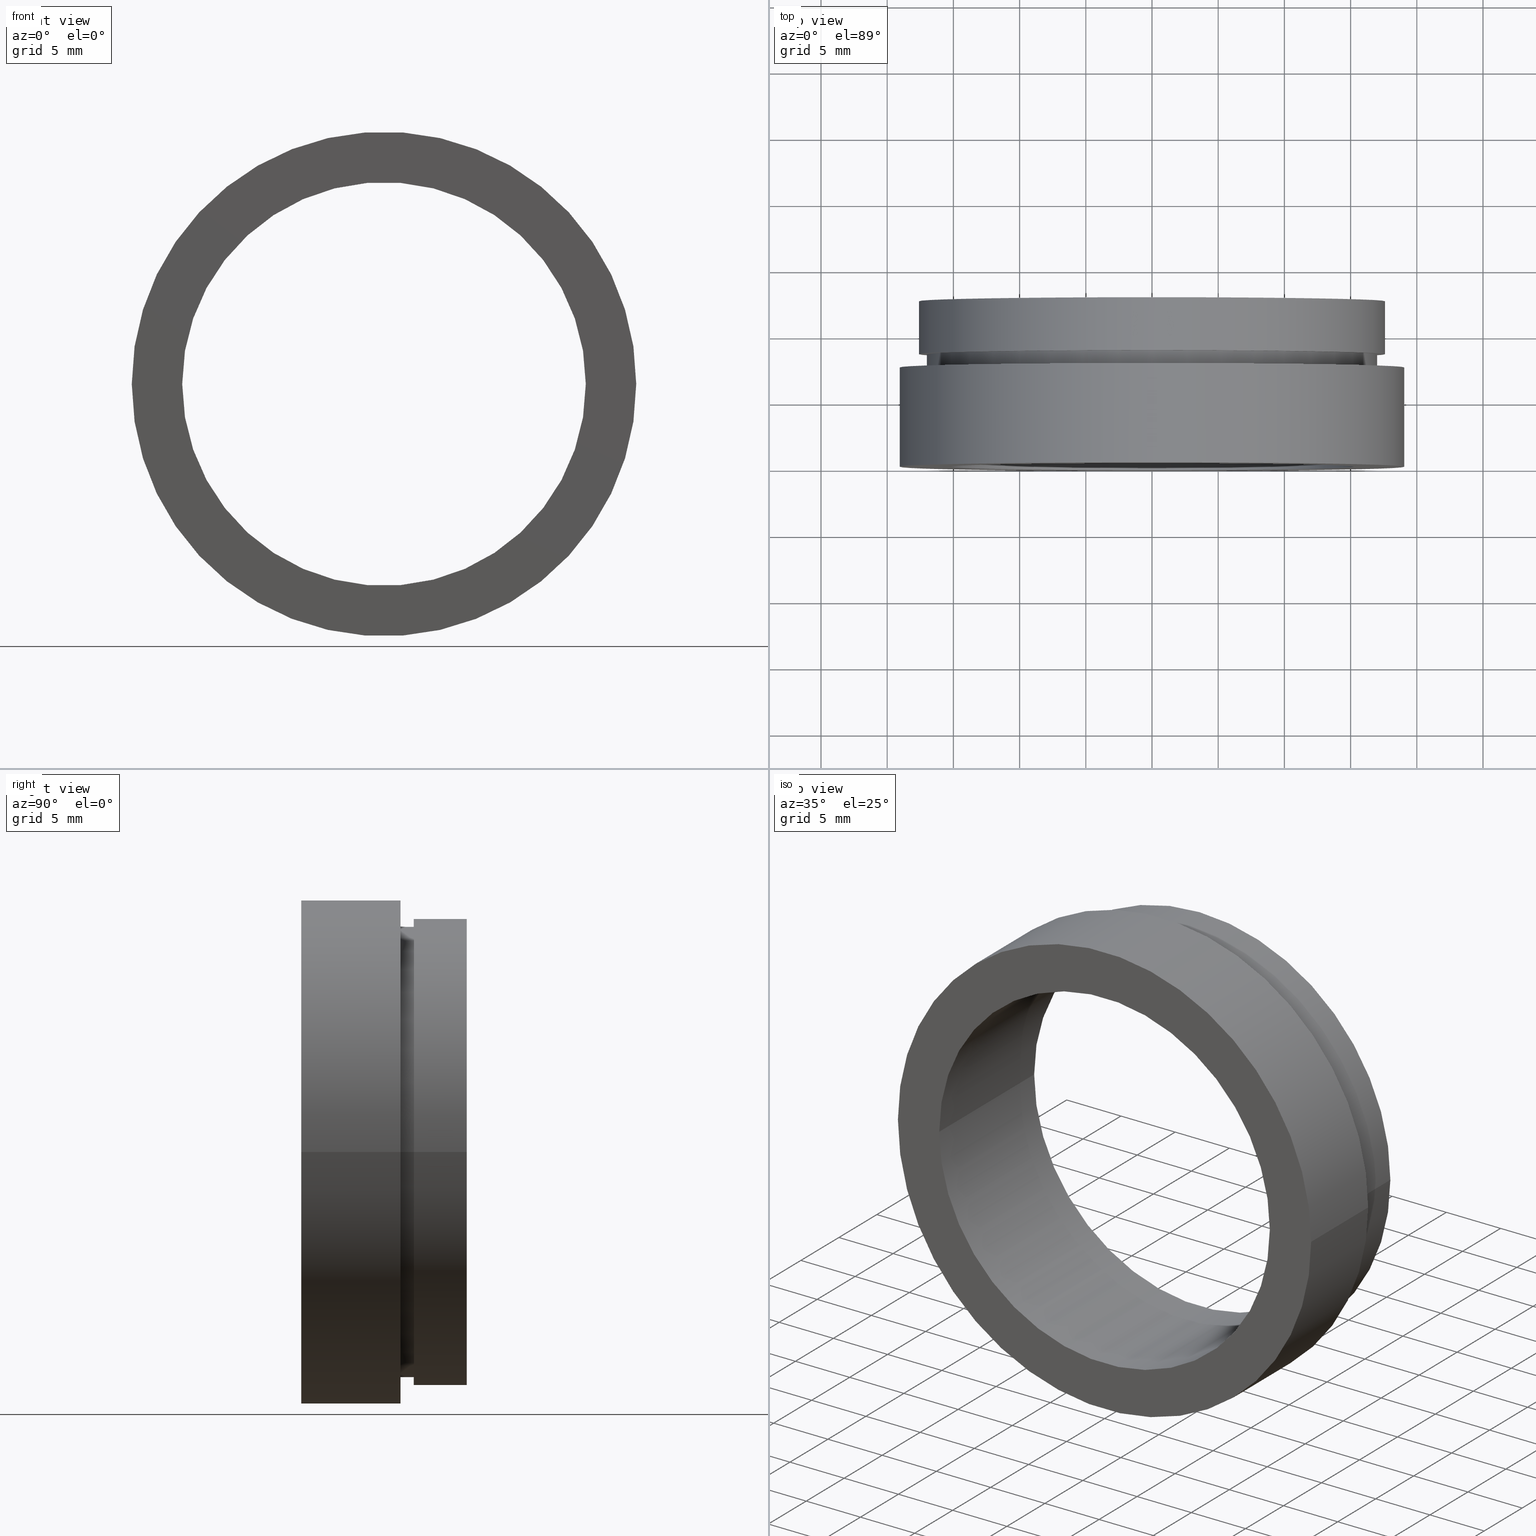
[diagram: canonical four-view strip — front | top / right | iso, engineering-drawing reading convention]
A machine part, canonical four-view strip (front | top / right | iso — engineering-drawing reading convention). The complete STEP part file that produces these views, byte-faithful:
ISO-10303-21;
HEADER;
FILE_DESCRIPTION (( 'STEP AP214' ),
    '1' );
FILE_NAME ('504108.STEP',
    '2019-10-08T05:36:44',
    ( '' ),
    ( '' ),
    'SwSTEP 2.0',
    'SolidWorks 2016',
    '' );
FILE_SCHEMA (( 'AUTOMOTIVE_DESIGN' ));
ENDSEC;

DATA;
#1 =( GEOMETRIC_REPRESENTATION_CONTEXT ( 3 ) GLOBAL_UNCERTAINTY_ASSIGNED_CONTEXT ( ( #315 ) ) GLOBAL_UNIT_ASSIGNED_CONTEXT ( ( #381, #417, #215 ) ) REPRESENTATION_CONTEXT ( 'NONE', 'WORKASPACE' ) );
#2 = ORIENTED_EDGE ( 'NONE', *, *, #97, .F. ) ;
#3 = MECHANICAL_DESIGN_GEOMETRIC_PRESENTATION_REPRESENTATION (  '', ( #222 ), #311 ) ;
#4 = UNCERTAINTY_MEASURE_WITH_UNIT (LENGTH_MEASURE( 1.000000000000000100E-005 ), #430, 'distance_accuracy_value', 'NONE');
#5 = CARTESIAN_POINT ( 'NONE',  ( 0.0000000000000000000, 16.88601823708207700, 0.0000000000000000000 ) ) ;
#6 = CYLINDRICAL_SURFACE ( 'NONE', #156, 17.60000000000000100 ) ;
#7 = PRODUCT ( '504108', '504108', '', ( #228 ) ) ;
#8 = PRESENTATION_STYLE_ASSIGNMENT (( #145 ) ) ;
#9 = EDGE_CURVE ( 'NONE', #58, #187, #154, .T. ) ;
#10 = PRODUCT_DEFINITION_FORMATION_WITH_SPECIFIED_SOURCE ( '�κ�', '', #7, .NOT_KNOWN. ) ;
#11 = PRESENTATION_LAYER_ASSIGNMENT (  '', '', ( #103 ) ) ;
#12 = EDGE_LOOP ( 'NONE', ( #96, #382 ) ) ;
#13 = ADVANCED_FACE ( 'NONE', ( #67 ), #275, .T. ) ;
#14 = CARTESIAN_POINT ( 'NONE',  ( 19.05000000000000400, 16.88601823708208000, 2.332952152375708400E-015 ) ) ;
#15 = VECTOR ( 'NONE', #388, 1000.000000000000000 ) ;
#16 = FILL_AREA_STYLE ('',( #180 ) ) ;
#17 = DIRECTION ( 'NONE',  ( -1.224646799147351000E-016, 1.000000000000000000, -0.0000000000000000000 ) ) ;
#18 = ORIENTED_EDGE ( 'NONE', *, *, #220, .F. ) ;
#19 = CARTESIAN_POINT ( 'NONE',  ( 1.149455719078122700E-015, 7.499999999999998200, 0.0000000000000000000 ) ) ;
#20 = CYLINDRICAL_SURFACE ( 'NONE', #111, 17.60000000000000100 ) ;
#21 = PRESENTATION_STYLE_ASSIGNMENT (( #90 ) ) ;
#22 = DIRECTION ( 'NONE',  ( -1.224646799147351000E-016, 1.000000000000000000, -0.0000000000000000000 ) ) ;
#23 = AXIS2_PLACEMENT_3D ( 'NONE', #323, #183, #353 ) ;
#24 = FILL_AREA_STYLE_COLOUR ( '', #141 ) ;
#25 = CARTESIAN_POINT ( 'NONE',  ( 5.371323195044472300E-016, 12.49999999999999800, 0.0000000000000000000 ) ) ;
#26 = CARTESIAN_POINT ( 'NONE',  ( 15.24000000000000000, 16.88601823708208000, 1.866361721900566200E-015 ) ) ;
#27 = APPLICATION_CONTEXT ( 'automotive_design' ) ;
#28 = VECTOR ( 'NONE', #59, 1000.000000000000000 ) ;
#29 = DIRECTION ( 'NONE',  ( -1.224646799147351000E-016, 1.000000000000000000, -0.0000000000000000000 ) ) ;
#30 = ORIENTED_EDGE ( 'NONE', *, *, #41, .T. ) ;
#31 = EDGE_CURVE ( 'NONE', #305, #298, #176, .T. ) ;
#32 = LINE ( 'NONE', #259, #210 ) ;
#33 = EDGE_CURVE ( 'NONE', #298, #348, #312, .T. ) ;
#34 = CARTESIAN_POINT ( 'NONE',  ( 1.149455719078122700E-015, 7.499999999999998200, 0.0000000000000000000 ) ) ;
#35 = MANIFOLD_SOLID_BREP ( '��ת1', #36 ) ;
#36 = CLOSED_SHELL ( 'NONE', ( #369, #62, #432, #248, #200, #263, #336, #95, #314, #13, #165, #129 ) ) ;
#37 = SURFACE_STYLE_FILL_AREA ( #81 ) ;
#38 = ORIENTED_EDGE ( 'NONE', *, *, #220, .T. ) ;
#39 =( NAMED_UNIT ( * ) PLANE_ANGLE_UNIT ( ) SI_UNIT ( $, .RADIAN. ) );
#40 = FACE_BOUND ( 'NONE', #12, .T. ) ;
#41 = EDGE_CURVE ( 'NONE', #187, #58, #149, .T. ) ;
#42 = EDGE_LOOP ( 'NONE', ( #357, #137, #104, #394 ) ) ;
#43 = CARTESIAN_POINT ( 'NONE',  ( 1.149455719078123100E-015, 7.499999999999996400, 0.0000000000000000000 ) ) ;
#44 = ORIENTED_EDGE ( 'NONE', *, *, #41, .F. ) ;
#45 = CARTESIAN_POINT ( 'NONE',  ( -19.05000000000000400, 16.88601823708207300, 0.0000000000000000000 ) ) ;
#46 = CARTESIAN_POINT ( 'NONE',  ( -19.05000000000000400, 7.499999999999993800, 0.0000000000000000000 ) ) ;
#47 = CARTESIAN_POINT ( 'NONE',  ( -19.04999999999999700, -5.802399104329318300E-015, 0.0000000000000000000 ) ) ;
#48 = EDGE_LOOP ( 'NONE', ( #269, #118, #428, #44 ) ) ;
#49 = CARTESIAN_POINT ( 'NONE',  ( 2.067940818438636500E-015, -3.469446951953614200E-015, 0.0000000000000000000 ) ) ;
#50 = SURFACE_STYLE_FILL_AREA ( #361 ) ;
#51 = AXIS2_PLACEMENT_3D ( 'NONE', #250, #112, #313 ) ;
#52 = EDGE_CURVE ( 'NONE', #88, #330, #297, .T. ) ;
#53 =( GEOMETRIC_REPRESENTATION_CONTEXT ( 3 ) GLOBAL_UNCERTAINTY_ASSIGNED_CONTEXT ( ( #4 ) ) GLOBAL_UNIT_ASSIGNED_CONTEXT ( ( #430, #364, #195 ) ) REPRESENTATION_CONTEXT ( 'NONE', 'WORKASPACE' ) );
#54 = AXIS2_PLACEMENT_3D ( 'NONE', #153, #289, #287 ) ;
#55 = SURFACE_SIDE_STYLE ('',( #37 ) ) ;
#56 = APPLICATION_PROTOCOL_DEFINITION ( 'draft international standard', 'automotive_design', 1998, #189 ) ;
#57 = ORIENTED_EDGE ( 'NONE', *, *, #290, .T. ) ;
#58 = VERTEX_POINT ( 'NONE', #46 ) ;
#59 = DIRECTION ( 'NONE',  ( -1.224646799147351000E-016, 1.000000000000000000, -0.0000000000000000000 ) ) ;
#60 = CIRCLE ( 'NONE', #206, 17.00000000000000000 ) ;
#61 = SURFACE_SIDE_STYLE ('',( #50 ) ) ;
#62 = ADVANCED_FACE ( 'NONE', ( #377 ), #253, .T. ) ;
#63 =( NAMED_UNIT ( * ) SI_UNIT ( $, .STERADIAN. ) SOLID_ANGLE_UNIT ( ) );
#64 = CARTESIAN_POINT ( 'NONE',  ( 2.067940818438636500E-015, -3.469446951953614200E-015, 0.0000000000000000000 ) ) ;
#65 = ORIENTED_EDGE ( 'NONE', *, *, #167, .T. ) ;
#66 = MECHANICAL_DESIGN_GEOMETRIC_PRESENTATION_REPRESENTATION (  '', ( #133 ), #1 ) ;
#67 = FACE_OUTER_BOUND ( 'NONE', #42, .T. ) ;
#68 = UNCERTAINTY_MEASURE_WITH_UNIT (LENGTH_MEASURE( 1.000000000000000100E-005 ), #199, 'distance_accuracy_value', 'NONE');
#69 = ORIENTED_EDGE ( 'NONE', *, *, #356, .F. ) ;
#70 = UNCERTAINTY_MEASURE_WITH_UNIT (LENGTH_MEASURE( 1.000000000000000100E-005 ), #168, 'distance_accuracy_value', 'NONE');
#71 = SURFACE_STYLE_FILL_AREA ( #434 ) ;
#72 = AXIS2_PLACEMENT_3D ( 'NONE', #286, #316, #74 ) ;
#73 = ORIENTED_EDGE ( 'NONE', *, *, #270, .T. ) ;
#74 = DIRECTION ( 'NONE',  ( -1.000000000000000000, -1.020425574104004100E-016, 0.0000000000000000000 ) ) ;
#75 = ORIENTED_EDGE ( 'NONE', *, *, #240, .F. ) ;
#76 = DIRECTION ( 'NONE',  ( -1.224646799147351000E-016, 1.000000000000000000, -0.0000000000000000000 ) ) ;
#77 = SURFACE_STYLE_USAGE ( .BOTH. , #285 ) ;
#78 = UNCERTAINTY_MEASURE_WITH_UNIT (LENGTH_MEASURE( 1.000000000000000100E-005 ), #257, 'distance_accuracy_value', 'NONE');
#79 = EDGE_CURVE ( 'NONE', #88, #267, #138, .T. ) ;
#80 = DIRECTION ( 'NONE',  ( -1.000000000000000000, -1.020425574104004100E-016, 0.0000000000000000000 ) ) ;
#81 = FILL_AREA_STYLE ('',( #252 ) ) ;
#82 = VECTOR ( 'NONE', #283, 1000.000000000000000 ) ;
#83 = VERTEX_POINT ( 'NONE', #251 ) ;
#84 = CARTESIAN_POINT ( 'NONE',  ( 15.24000000000000400, 12.50000000000000000, 1.866361721900566600E-015 ) ) ;
#85 = CARTESIAN_POINT ( 'NONE',  ( 2.067940818438636500E-015, -3.469446951953614200E-015, 0.0000000000000000000 ) ) ;
#86 = DIRECTION ( 'NONE',  ( 0.0000000000000000000, 0.0000000000000000000, 1.000000000000000000 ) ) ;
#87 = AXIS2_PLACEMENT_3D ( 'NONE', #43, #281, #352 ) ;
#88 = VERTEX_POINT ( 'NONE', #383 ) ;
#89 = DIRECTION ( 'NONE',  ( 1.224646799147351000E-016, -1.000000000000000000, 0.0000000000000000000 ) ) ;
#90 = SURFACE_STYLE_USAGE ( .BOTH. , #61 ) ;
#91 = DIRECTION ( 'NONE',  ( -1.000000000000000000, -2.276539994720219300E-016, 0.0000000000000000000 ) ) ;
#92 = SURFACE_STYLE_FILL_AREA ( #166 ) ;
#93 = CARTESIAN_POINT ( 'NONE',  ( 17.00000000000000000, 8.500000000000000000, 2.081899558550500300E-015 ) ) ;
#94 = FILL_AREA_STYLE_COLOUR ( '', #360 ) ;
#95 = ADVANCED_FACE ( 'NONE', ( #288 ), #6, .T. ) ;
#96 = ORIENTED_EDGE ( 'NONE', *, *, #142, .F. ) ;
#97 = EDGE_CURVE ( 'NONE', #237, #267, #264, .T. ) ;
#98 = DIRECTION ( 'NONE',  ( -1.000000000000000000, -1.224646799147351200E-016, 0.0000000000000000000 ) ) ;
#99 = ORIENTED_EDGE ( 'NONE', *, *, #276, .T. ) ;
#100 =( LENGTH_UNIT ( ) NAMED_UNIT ( * ) SI_UNIT ( .MILLI., .METRE. ) );
#101 = FACE_OUTER_BOUND ( 'NONE', #272, .T. ) ;
#102 = MECHANICAL_DESIGN_GEOMETRIC_PRESENTATION_REPRESENTATION (  '', ( #327 ), #53 ) ;
#103 = STYLED_ITEM ( 'NONE', ( #21 ), #263 ) ;
#104 = ORIENTED_EDGE ( 'NONE', *, *, #240, .T. ) ;
#105 = DIRECTION ( 'NONE',  ( -1.224646799147351000E-016, 1.000000000000000000, -0.0000000000000000000 ) ) ;
#106 = FACE_OUTER_BOUND ( 'NONE', #113, .T. ) ;
#107 = FILL_AREA_STYLE ('',( #386 ) ) ;
#108 = EDGE_LOOP ( 'NONE', ( #341, #190, #2, #294 ) ) ;
#109 = AXIS2_PLACEMENT_3D ( 'NONE', #389, #354, #292 ) ;
#110 = SURFACE_SIDE_STYLE ('',( #413 ) ) ;
#111 = AXIS2_PLACEMENT_3D ( 'NONE', #433, #337, #235 ) ;
#112 = DIRECTION ( 'NONE',  ( -1.224646799147351000E-016, 1.000000000000000000, -0.0000000000000000000 ) ) ;
#113 = EDGE_LOOP ( 'NONE', ( #209, #57 ) ) ;
#114 = DIRECTION ( 'NONE',  ( -1.224646799147351000E-016, 1.000000000000000000, -0.0000000000000000000 ) ) ;
#115 = CYLINDRICAL_SURFACE ( 'NONE', #415, 15.24000000000000000 ) ;
#116 = CYLINDRICAL_SURFACE ( 'NONE', #109, 19.05000000000000400 ) ;
#117 = CARTESIAN_POINT ( 'NONE',  ( 0.0000000000000000000, 16.88601823708207700, 0.0000000000000000000 ) ) ;
#118 = ORIENTED_EDGE ( 'NONE', *, *, #412, .T. ) ;
#119 = DIRECTION ( 'NONE',  ( -1.224646799147351000E-016, 1.000000000000000000, -0.0000000000000000000 ) ) ;
#120 = VECTOR ( 'NONE', #114, 1000.000000000000000 ) ;
#121 = PRODUCT_RELATED_PRODUCT_CATEGORY ( 'part', '', ( #7 ) ) ;
#122 = AXIS2_PLACEMENT_3D ( 'NONE', #25, #427, #192 ) ;
#123 = SURFACE_STYLE_USAGE ( .BOTH. , #55 ) ;
#124 =( NAMED_UNIT ( * ) PLANE_ANGLE_UNIT ( ) SI_UNIT ( $, .RADIAN. ) );
#125 = EDGE_LOOP ( 'NONE', ( #38, #157 ) ) ;
#126 = CIRCLE ( 'NONE', #256, 17.60000000000000100 ) ;
#127 = VERTEX_POINT ( 'NONE', #47 ) ;
#128 = DIRECTION ( 'NONE',  ( -1.224646799147351000E-016, 1.000000000000000000, -0.0000000000000000000 ) ) ;
#129 = ADVANCED_FACE ( 'NONE', ( #174 ), #116, .T. ) ;
#130 = CIRCLE ( 'NONE', #54, 15.24000000000000200 ) ;
#131 = FILL_AREA_STYLE_COLOUR ( '', #301 ) ;
#132 =( NAMED_UNIT ( * ) SI_UNIT ( $, .STERADIAN. ) SOLID_ANGLE_UNIT ( ) );
#133 = STYLED_ITEM ( 'NONE', ( #8 ), #35 ) ;
#134 = EDGE_LOOP ( 'NONE', ( #331, #409, #426, #340 ) ) ;
#135 = PRODUCT_DEFINITION ( 'δ֪', '', #10, #420 ) ;
#136 = LINE ( 'NONE', #261, #372 ) ;
#137 = ORIENTED_EDGE ( 'NONE', *, *, #378, .T. ) ;
#138 = LINE ( 'NONE', #181, #82 ) ;
#139 = DIRECTION ( 'NONE',  ( -1.224646799147351000E-016, 1.000000000000000000, -0.0000000000000000000 ) ) ;
#140 = EDGE_LOOP ( 'NONE', ( #403, #307 ) ) ;
#141 = COLOUR_RGB ( '',1.000000000000000000, 1.000000000000000000, 1.000000000000000000 ) ;
#142 = EDGE_CURVE ( 'NONE', #217, #305, #60, .T. ) ;
#143 = AXIS2_PLACEMENT_3D ( 'NONE', #161, #325, #332 ) ;
#144 = VECTOR ( 'NONE', #254, 1000.000000000000000 ) ;
#145 = SURFACE_STYLE_USAGE ( .BOTH. , #110 ) ;
#146 = ORIENTED_EDGE ( 'NONE', *, *, #234, .F. ) ;
#147 = DIRECTION ( 'NONE',  ( -1.000000000000000000, -9.856383386231857600E-017, 0.0000000000000000000 ) ) ;
#148 = CARTESIAN_POINT ( 'NONE',  ( 1.026991039163387700E-015, 8.499999999999998200, 0.0000000000000000000 ) ) ;
#149 = CIRCLE ( 'NONE', #87, 19.05000000000000400 ) ;
#150 = DIRECTION ( 'NONE',  ( -1.000000000000000000, -1.224646799147350700E-016, 0.0000000000000000000 ) ) ;
#151 = CARTESIAN_POINT ( 'NONE',  ( -17.60000000000000100, 12.49999999999999500, 0.0000000000000000000 ) ) ;
#152 = LINE ( 'NONE', #45, #120 ) ;
#153 = CARTESIAN_POINT ( 'NONE',  ( 5.371323195044472300E-016, 12.49999999999999800, 0.0000000000000000000 ) ) ;
#154 = CIRCLE ( 'NONE', #186, 19.05000000000000400 ) ;
#155 = PLANE ( 'NONE',  #143 ) ;
#156 = AXIS2_PLACEMENT_3D ( 'NONE', #319, #105, #351 ) ;
#157 = ORIENTED_EDGE ( 'NONE', *, *, #33, .T. ) ;
#158 = CARTESIAN_POINT ( 'NONE',  ( 0.0000000000000000000, 16.88601823708207700, 0.0000000000000000000 ) ) ;
#159 = EDGE_LOOP ( 'NONE', ( #400, #371, #18, #75 ) ) ;
#160 = AXIS2_PLACEMENT_3D ( 'NONE', #393, #86, #390 ) ;
#161 = CARTESIAN_POINT ( 'NONE',  ( 17.60000000000000100, 8.500000000000000000, 0.0000000000000000000 ) ) ;
#162 = DIRECTION ( 'NONE',  ( -1.000000000000000000, -2.276539994720219300E-016, 0.0000000000000000000 ) ) ;
#163 = CARTESIAN_POINT ( 'NONE',  ( 17.60000000000000100, 12.49999999999999800, 2.155378366499341600E-015 ) ) ;
#164 = FACE_OUTER_BOUND ( 'NONE', #108, .T. ) ;
#165 = ADVANCED_FACE ( 'NONE', ( #40, #344 ), #355, .F. ) ;
#166 = FILL_AREA_STYLE ('',( #94 ) ) ;
#167 = EDGE_CURVE ( 'NONE', #83, #187, #229, .T. ) ;
#168 =( LENGTH_UNIT ( ) NAMED_UNIT ( * ) SI_UNIT ( .MILLI., .METRE. ) );
#169 = AXIS2_PLACEMENT_3D ( 'NONE', #300, #303, #98 ) ;
#170 = EDGE_LOOP ( 'NONE', ( #227, #214, #231, #408 ) ) ;
#171 = DIRECTION ( 'NONE',  ( -1.224646799147351000E-016, 1.000000000000000000, -0.0000000000000000000 ) ) ;
#172 = CIRCLE ( 'NONE', #425, 17.00000000000000000 ) ;
#173 = EDGE_CURVE ( 'NONE', #175, #384, #130, .T. ) ;
#174 = FACE_OUTER_BOUND ( 'NONE', #48, .T. ) ;
#175 = VERTEX_POINT ( 'NONE', #84 ) ;
#176 = LINE ( 'NONE', #419, #326 ) ;
#177 = FACE_OUTER_BOUND ( 'NONE', #238, .T. ) ;
#178 = EDGE_CURVE ( 'NONE', #127, #58, #152, .T. ) ;
#179 = ORIENTED_EDGE ( 'NONE', *, *, #173, .F. ) ;
#180 = FILL_AREA_STYLE_COLOUR ( '', #225 ) ;
#181 = CARTESIAN_POINT ( 'NONE',  ( 17.60000000000000100, 16.88601823708208000, 2.155378366499341600E-015 ) ) ;
#182 = DIRECTION ( 'NONE',  ( -1.224646799147351000E-016, 1.000000000000000000, -0.0000000000000000000 ) ) ;
#183 = DIRECTION ( 'NONE',  ( -1.224646799147351000E-016, 1.000000000000000000, -0.0000000000000000000 ) ) ;
#184 = DIRECTION ( 'NONE',  ( -1.224646799147351000E-016, 1.000000000000000000, -0.0000000000000000000 ) ) ;
#185 = ORIENTED_EDGE ( 'NONE', *, *, #423, .F. ) ;
#186 = AXIS2_PLACEMENT_3D ( 'NONE', #342, #139, #410 ) ;
#187 = VERTEX_POINT ( 'NONE', #188 ) ;
#188 = CARTESIAN_POINT ( 'NONE',  ( 19.05000000000000400, 7.499999999999999100, 2.332952152375708400E-015 ) ) ;
#189 = APPLICATION_CONTEXT ( 'automotive_design' ) ;
#190 = ORIENTED_EDGE ( 'NONE', *, *, #79, .T. ) ;
#191 = AXIS2_PLACEMENT_3D ( 'NONE', #158, #335, #402 ) ;
#192 = DIRECTION ( 'NONE',  ( -1.000000000000000000, -1.138269997360109400E-016, 0.0000000000000000000 ) ) ;
#193 =( NAMED_UNIT ( * ) PLANE_ANGLE_UNIT ( ) SI_UNIT ( $, .RADIAN. ) );
#194 = DIRECTION ( 'NONE',  ( 1.000000000000000000, 1.224646799147351000E-016, 0.0000000000000000000 ) ) ;
#195 =( NAMED_UNIT ( * ) SI_UNIT ( $, .STERADIAN. ) SOLID_ANGLE_UNIT ( ) );
#196 = PRODUCT_DEFINITION_SHAPE ( 'NONE', 'NONE',  #135 ) ;
#197 = FACE_BOUND ( 'NONE', #125, .T. ) ;
#198 = APPLICATION_PROTOCOL_DEFINITION ( 'draft international standard', 'automotive_design', 1998, #27 ) ;
#199 =( LENGTH_UNIT ( ) NAMED_UNIT ( * ) SI_UNIT ( .MILLI., .METRE. ) );
#200 = ADVANCED_FACE ( 'NONE', ( #232, #405 ), #223, .F. ) ;
#201 = PRESENTATION_STYLE_ASSIGNMENT (( #347 ) ) ;
#202 = DIRECTION ( 'NONE',  ( -1.000000000000000000, -1.224646799147351200E-016, 0.0000000000000000000 ) ) ;
#203 = AXIS2_PLACEMENT_3D ( 'NONE', #218, #422, #249 ) ;
#204 = DIRECTION ( 'NONE',  ( -1.000000000000000000, -1.020425574104004100E-016, 0.0000000000000000000 ) ) ;
#205 = DIRECTION ( 'NONE',  ( -1.224646799147351000E-016, 1.000000000000000000, -0.0000000000000000000 ) ) ;
#206 = AXIS2_PLACEMENT_3D ( 'NONE', #19, #119, #322 ) ;
#207 = ORIENTED_EDGE ( 'NONE', *, *, #270, .F. ) ;
#208 = SURFACE_STYLE_FILL_AREA ( #107 ) ;
#209 = ORIENTED_EDGE ( 'NONE', *, *, #97, .T. ) ;
#210 = VECTOR ( 'NONE', #22, 1000.000000000000000 ) ;
#211 = PRESENTATION_LAYER_ASSIGNMENT (  '', '', ( #324 ) ) ;
#212 =( GEOMETRIC_REPRESENTATION_CONTEXT ( 3 ) GLOBAL_UNCERTAINTY_ASSIGNED_CONTEXT ( ( #70 ) ) GLOBAL_UNIT_ASSIGNED_CONTEXT ( ( #168, #406, #63 ) ) REPRESENTATION_CONTEXT ( 'NONE', 'WORKASPACE' ) );
#213 = AXIS2_PLACEMENT_3D ( 'NONE', #64, #265, #202 ) ;
#214 = ORIENTED_EDGE ( 'NONE', *, *, #356, .T. ) ;
#215 =( NAMED_UNIT ( * ) SI_UNIT ( $, .STERADIAN. ) SOLID_ANGLE_UNIT ( ) );
#216 = DIRECTION ( 'NONE',  ( -1.224646799147351000E-016, 1.000000000000000000, -0.0000000000000000000 ) ) ;
#217 = VERTEX_POINT ( 'NONE', #385 ) ;
#218 = CARTESIAN_POINT ( 'NONE',  ( 17.00000000000000000, 7.499999999999999100, 0.0000000000000000000 ) ) ;
#219 = CARTESIAN_POINT ( 'NONE',  ( -17.00000000000000000, 16.88601823708207300, 0.0000000000000000000 ) ) ;
#220 = EDGE_CURVE ( 'NONE', #348, #298, #367, .T. ) ;
#221 = COLOUR_RGB ( '',1.000000000000000000, 1.000000000000000000, 1.000000000000000000 ) ;
#222 = STYLED_ITEM ( 'NONE', ( #273 ), #248 ) ;
#223 = PLANE ( 'NONE',  #266 ) ;
#224 = EDGE_CURVE ( 'NONE', #258, #416, #284, .T. ) ;
#225 = COLOUR_RGB ( '',1.000000000000000000, 1.000000000000000000, 1.000000000000000000 ) ;
#226 = CARTESIAN_POINT ( 'NONE',  ( 5.371323195044474300E-016, 12.49999999999999600, 0.0000000000000000000 ) ) ;
#227 = ORIENTED_EDGE ( 'NONE', *, *, #224, .F. ) ;
#228 = PRODUCT_CONTEXT ( 'NONE', #189, 'mechanical' ) ;
#229 = LINE ( 'NONE', #14, #144 ) ;
#230 = DIRECTION ( 'NONE',  ( -1.224646799147351000E-016, 1.000000000000000000, -0.0000000000000000000 ) ) ;
#231 = ORIENTED_EDGE ( 'NONE', *, *, #173, .T. ) ;
#232 = FACE_OUTER_BOUND ( 'NONE', #245, .T. ) ;
#233 = SURFACE_STYLE_USAGE ( .BOTH. , #370 ) ;
#234 = EDGE_CURVE ( 'NONE', #330, #88, #126, .T. ) ;
#235 = DIRECTION ( 'NONE',  ( -1.000000000000000000, -1.971276677246371500E-016, 0.0000000000000000000 ) ) ;
#236 = ORIENTED_EDGE ( 'NONE', *, *, #9, .T. ) ;
#237 = VERTEX_POINT ( 'NONE', #151 ) ;
#238 = EDGE_LOOP ( 'NONE', ( #345, #65, #317, #334 ) ) ;
#239 = CIRCLE ( 'NONE', #213, 19.05000000000000100 ) ;
#240 = EDGE_CURVE ( 'NONE', #217, #348, #309, .T. ) ;
#241 = PRESENTATION_LAYER_ASSIGNMENT (  '', '', ( #222 ) ) ;
#242 = ORIENTED_EDGE ( 'NONE', *, *, #310, .F. ) ;
#243 = SHAPE_DEFINITION_REPRESENTATION ( #196, #271 ) ;
#244 =( GEOMETRIC_REPRESENTATION_CONTEXT ( 3 ) GLOBAL_UNCERTAINTY_ASSIGNED_CONTEXT ( ( #397 ) ) GLOBAL_UNIT_ASSIGNED_CONTEXT ( ( #308, #39, #376 ) ) REPRESENTATION_CONTEXT ( 'NONE', 'WORKASPACE' ) );
#245 = EDGE_LOOP ( 'NONE', ( #185, #362 ) ) ;
#246 = ORIENTED_EDGE ( 'NONE', *, *, #52, .F. ) ;
#247 = CARTESIAN_POINT ( 'NONE',  ( 1.026991039163387700E-015, 8.499999999999998200, 0.0000000000000000000 ) ) ;
#248 = ADVANCED_FACE ( 'NONE', ( #431 ), #115, .F. ) ;
#249 = DIRECTION ( 'NONE',  ( 1.000000000000000000, 1.224646799147351000E-016, 0.0000000000000000000 ) ) ;
#250 = CARTESIAN_POINT ( 'NONE',  ( 0.0000000000000000000, 16.88601823708207700, 0.0000000000000000000 ) ) ;
#251 = CARTESIAN_POINT ( 'NONE',  ( 19.05000000000000400, -1.136494799577910300E-015, 2.332952152375708400E-015 ) ) ;
#252 = FILL_AREA_STYLE_COLOUR ( '', #221 ) ;
#253 = CYLINDRICAL_SURFACE ( 'NONE', #51, 17.00000000000000000 ) ;
#254 = DIRECTION ( 'NONE',  ( -1.224646799147351000E-016, 1.000000000000000000, -0.0000000000000000000 ) ) ;
#255 = EDGE_CURVE ( 'NONE', #330, #237, #136, .T. ) ;
#256 = AXIS2_PLACEMENT_3D ( 'NONE', #148, #182, #418 ) ;
#257 =( LENGTH_UNIT ( ) NAMED_UNIT ( * ) SI_UNIT ( .MILLI., .METRE. ) );
#258 = VERTEX_POINT ( 'NONE', #366 ) ;
#259 = CARTESIAN_POINT ( 'NONE',  ( -15.24000000000000000, 16.88601823708207300, 0.0000000000000000000 ) ) ;
#260 = DIRECTION ( 'NONE',  ( -1.000000000000000000, -9.856383386231857600E-017, 0.0000000000000000000 ) ) ;
#261 = CARTESIAN_POINT ( 'NONE',  ( -17.60000000000000100, 16.88601823708207300, 0.0000000000000000000 ) ) ;
#262 = LINE ( 'NONE', #26, #28 ) ;
#263 = ADVANCED_FACE ( 'NONE', ( #101 ), #398, .F. ) ;
#264 = CIRCLE ( 'NONE', #23, 17.60000000000000100 ) ;
#265 = DIRECTION ( 'NONE',  ( -1.224646799147351000E-016, 1.000000000000000000, -0.0000000000000000000 ) ) ;
#266 = AXIS2_PLACEMENT_3D ( 'NONE', #320, #282, #359 ) ;
#267 = VERTEX_POINT ( 'NONE', #163 ) ;
#268 = FACE_BOUND ( 'NONE', #279, .T. ) ;
#269 = ORIENTED_EDGE ( 'NONE', *, *, #167, .F. ) ;
#270 = EDGE_CURVE ( 'NONE', #384, #175, #411, .T. ) ;
#271 = ADVANCED_BREP_SHAPE_REPRESENTATION ( '504108', ( #35, #160 ), #424 ) ;
#272 = EDGE_LOOP ( 'NONE', ( #69, #242, #99, #73 ) ) ;
#273 = PRESENTATION_STYLE_ASSIGNMENT (( #123 ) ) ;
#274 = COLOUR_RGB ( '',1.000000000000000000, 1.000000000000000000, 1.000000000000000000 ) ;
#275 = CYLINDRICAL_SURFACE ( 'NONE', #346, 17.00000000000000000 ) ;
#276 = EDGE_CURVE ( 'NONE', #416, #384, #32, .T. ) ;
#277 = CIRCLE ( 'NONE', #374, 15.24000000000000000 ) ;
#278 = DIRECTION ( 'NONE',  ( -1.000000000000000000, -2.040851148208008200E-016, 0.0000000000000000000 ) ) ;
#279 = EDGE_LOOP ( 'NONE', ( #207, #179 ) ) ;
#280 = STYLED_ITEM ( 'NONE', ( #293 ), #432 ) ;
#281 = DIRECTION ( 'NONE',  ( -1.224646799147351000E-016, 1.000000000000000000, -0.0000000000000000000 ) ) ;
#282 = DIRECTION ( 'NONE',  ( -1.224646799147351000E-016, 1.000000000000000000, 0.0000000000000000000 ) ) ;
#283 = DIRECTION ( 'NONE',  ( -1.224646799147351000E-016, 1.000000000000000000, -0.0000000000000000000 ) ) ;
#284 = CIRCLE ( 'NONE', #291, 15.24000000000000000 ) ;
#285 = SURFACE_SIDE_STYLE ('',( #92 ) ) ;
#286 = CARTESIAN_POINT ( 'NONE',  ( 1.026991039163387700E-015, 8.499999999999998200, 0.0000000000000000000 ) ) ;
#287 = DIRECTION ( 'NONE',  ( -1.000000000000000000, -1.138269997360109400E-016, 0.0000000000000000000 ) ) ;
#288 = FACE_OUTER_BOUND ( 'NONE', #134, .T. ) ;
#289 = DIRECTION ( 'NONE',  ( -1.224646799147351000E-016, 1.000000000000000000, -0.0000000000000000000 ) ) ;
#290 = EDGE_CURVE ( 'NONE', #267, #237, #306, .T. ) ;
#291 = AXIS2_PLACEMENT_3D ( 'NONE', #49, #321, #150 ) ;
#292 = DIRECTION ( 'NONE',  ( -1.000000000000000000, -1.821231995776175000E-016, 0.0000000000000000000 ) ) ;
#293 = PRESENTATION_STYLE_ASSIGNMENT (( #233 ) ) ;
#294 = ORIENTED_EDGE ( 'NONE', *, *, #255, .F. ) ;
#295 = EDGE_LOOP ( 'NONE', ( #236, #30 ) ) ;
#296 = DIRECTION ( 'NONE',  ( -1.000000000000000000, -1.224646799147350700E-016, 0.0000000000000000000 ) ) ;
#297 = CIRCLE ( 'NONE', #373, 17.60000000000000100 ) ;
#298 = VERTEX_POINT ( 'NONE', #93 ) ;
#299 = CARTESIAN_POINT ( 'NONE',  ( -15.23999999999999800, -5.335808673854176800E-015, 0.0000000000000000000 ) ) ;
#300 = CARTESIAN_POINT ( 'NONE',  ( 2.067940818438636500E-015, -3.469446951953614200E-015, 0.0000000000000000000 ) ) ;
#301 = COLOUR_RGB ( '',1.000000000000000000, 1.000000000000000000, 1.000000000000000000 ) ;
#302 = PRESENTATION_LAYER_ASSIGNMENT (  '', '', ( #133 ) ) ;
#303 = DIRECTION ( 'NONE',  ( -1.224646799147351000E-016, 1.000000000000000000, -0.0000000000000000000 ) ) ;
#304 = PRESENTATION_LAYER_ASSIGNMENT (  '', '', ( #280 ) ) ;
#305 = VERTEX_POINT ( 'NONE', #429 ) ;
#306 = CIRCLE ( 'NONE', #407, 17.60000000000000100 ) ;
#307 = ORIENTED_EDGE ( 'NONE', *, *, #224, .T. ) ;
#308 =( LENGTH_UNIT ( ) NAMED_UNIT ( * ) SI_UNIT ( .MILLI., .METRE. ) );
#309 = LINE ( 'NONE', #219, #15 ) ;
#310 = EDGE_CURVE ( 'NONE', #416, #258, #277, .T. ) ;
#311 =( GEOMETRIC_REPRESENTATION_CONTEXT ( 3 ) GLOBAL_UNCERTAINTY_ASSIGNED_CONTEXT ( ( #68 ) ) GLOBAL_UNIT_ASSIGNED_CONTEXT ( ( #199, #124, #404 ) ) REPRESENTATION_CONTEXT ( 'NONE', 'WORKASPACE' ) );
#312 = CIRCLE ( 'NONE', #72, 17.00000000000000000 ) ;
#313 = DIRECTION ( 'NONE',  ( -1.000000000000000000, -2.040851148208008200E-016, 0.0000000000000000000 ) ) ;
#314 = ADVANCED_FACE ( 'NONE', ( #375, #197 ), #155, .F. ) ;
#315 = UNCERTAINTY_MEASURE_WITH_UNIT (LENGTH_MEASURE( 1.000000000000000100E-005 ), #381, 'distance_accuracy_value', 'NONE');
#316 = DIRECTION ( 'NONE',  ( -1.224646799147351000E-016, 1.000000000000000000, -0.0000000000000000000 ) ) ;
#317 = ORIENTED_EDGE ( 'NONE', *, *, #9, .F. ) ;
#318 = CARTESIAN_POINT ( 'NONE',  ( 1.026991039163387700E-015, 8.499999999999998200, 0.0000000000000000000 ) ) ;
#319 = CARTESIAN_POINT ( 'NONE',  ( 0.0000000000000000000, 16.88601823708207700, 0.0000000000000000000 ) ) ;
#320 = CARTESIAN_POINT ( 'NONE',  ( 19.05000000000000400, -4.336808689942023700E-016, 0.0000000000000000000 ) ) ;
#321 = DIRECTION ( 'NONE',  ( -1.224646799147351000E-016, 1.000000000000000000, -0.0000000000000000000 ) ) ;
#322 = DIRECTION ( 'NONE',  ( -1.000000000000000000, -1.020425574104004100E-016, 0.0000000000000000000 ) ) ;
#323 = CARTESIAN_POINT ( 'NONE',  ( 5.371323195044474300E-016, 12.49999999999999600, 0.0000000000000000000 ) ) ;
#324 = STYLED_ITEM ( 'NONE', ( #201 ), #95 ) ;
#325 = DIRECTION ( 'NONE',  ( -1.224646799147351000E-016, 1.000000000000000000, 0.0000000000000000000 ) ) ;
#326 = VECTOR ( 'NONE', #216, 1000.000000000000000 ) ;
#327 = STYLED_ITEM ( 'NONE', ( #414 ), #271 ) ;
#328 = MECHANICAL_DESIGN_GEOMETRIC_PRESENTATION_REPRESENTATION (  '', ( #280 ), #212 ) ;
#329 = CARTESIAN_POINT ( 'NONE',  ( -17.00000000000000000, 8.499999999999996400, 0.0000000000000000000 ) ) ;
#330 = VERTEX_POINT ( 'NONE', #365 ) ;
#331 = ORIENTED_EDGE ( 'NONE', *, *, #79, .F. ) ;
#332 = DIRECTION ( 'NONE',  ( -1.000000000000000000, -1.224646799147351000E-016, 0.0000000000000000000 ) ) ;
#333 = CARTESIAN_POINT ( 'NONE',  ( 0.0000000000000000000, 16.88601823708207700, 0.0000000000000000000 ) ) ;
#334 = ORIENTED_EDGE ( 'NONE', *, *, #178, .F. ) ;
#335 = DIRECTION ( 'NONE',  ( -1.224646799147351000E-016, 1.000000000000000000, -0.0000000000000000000 ) ) ;
#336 = ADVANCED_FACE ( 'NONE', ( #268, #106 ), #399, .F. ) ;
#337 = DIRECTION ( 'NONE',  ( -1.224646799147351000E-016, 1.000000000000000000, -0.0000000000000000000 ) ) ;
#338 =( GEOMETRIC_REPRESENTATION_CONTEXT ( 3 ) GLOBAL_UNCERTAINTY_ASSIGNED_CONTEXT ( ( #78 ) ) GLOBAL_UNIT_ASSIGNED_CONTEXT ( ( #257, #193, #368 ) ) REPRESENTATION_CONTEXT ( 'NONE', 'WORKASPACE' ) );
#339 =( NAMED_UNIT ( * ) PLANE_ANGLE_UNIT ( ) SI_UNIT ( $, .RADIAN. ) );
#340 = ORIENTED_EDGE ( 'NONE', *, *, #290, .F. ) ;
#341 = ORIENTED_EDGE ( 'NONE', *, *, #234, .T. ) ;
#342 = CARTESIAN_POINT ( 'NONE',  ( 1.149455719078123100E-015, 7.499999999999996400, 0.0000000000000000000 ) ) ;
#343 = SURFACE_SIDE_STYLE ('',( #208 ) ) ;
#344 = FACE_OUTER_BOUND ( 'NONE', #295, .T. ) ;
#345 = ORIENTED_EDGE ( 'NONE', *, *, #423, .T. ) ;
#346 = AXIS2_PLACEMENT_3D ( 'NONE', #5, #171, #278 ) ;
#347 = SURFACE_STYLE_USAGE ( .BOTH. , #343 ) ;
#348 = VERTEX_POINT ( 'NONE', #329 ) ;
#349 = PRESENTATION_LAYER_ASSIGNMENT (  '', '', ( #327 ) ) ;
#350 = MECHANICAL_DESIGN_GEOMETRIC_PRESENTATION_REPRESENTATION (  '', ( #103 ), #338 ) ;
#351 = DIRECTION ( 'NONE',  ( -1.000000000000000000, -1.971276677246371500E-016, 0.0000000000000000000 ) ) ;
#352 = DIRECTION ( 'NONE',  ( -1.000000000000000000, -1.365923996832131400E-016, 0.0000000000000000000 ) ) ;
#353 = DIRECTION ( 'NONE',  ( -1.000000000000000000, -9.856383386231857600E-017, 0.0000000000000000000 ) ) ;
#354 = DIRECTION ( 'NONE',  ( -1.224646799147351000E-016, 1.000000000000000000, -0.0000000000000000000 ) ) ;
#355 = PLANE ( 'NONE',  #203 ) ;
#356 = EDGE_CURVE ( 'NONE', #258, #175, #262, .T. ) ;
#357 = ORIENTED_EDGE ( 'NONE', *, *, #31, .F. ) ;
#358 = AXIS2_PLACEMENT_3D ( 'NONE', #392, #89, #194 ) ;
#359 = DIRECTION ( 'NONE',  ( -1.000000000000000000, -1.224646799147351000E-016, 0.0000000000000000000 ) ) ;
#360 = COLOUR_RGB ( '',1.000000000000000000, 1.000000000000000000, 1.000000000000000000 ) ;
#361 = FILL_AREA_STYLE ('',( #24 ) ) ;
#362 = ORIENTED_EDGE ( 'NONE', *, *, #412, .F. ) ;
#363 = DIRECTION ( 'NONE',  ( -1.224646799147351000E-016, 1.000000000000000000, -0.0000000000000000000 ) ) ;
#364 =( NAMED_UNIT ( * ) PLANE_ANGLE_UNIT ( ) SI_UNIT ( $, .RADIAN. ) );
#365 = CARTESIAN_POINT ( 'NONE',  ( -17.60000000000000100, 8.499999999999996400, 0.0000000000000000000 ) ) ;
#366 = CARTESIAN_POINT ( 'NONE',  ( 15.24000000000000400, -1.603085230053050900E-015, 1.866361721900566600E-015 ) ) ;
#367 = CIRCLE ( 'NONE', #395, 17.00000000000000000 ) ;
#368 =( NAMED_UNIT ( * ) SI_UNIT ( $, .STERADIAN. ) SOLID_ANGLE_UNIT ( ) );
#369 = ADVANCED_FACE ( 'NONE', ( #177 ), #379, .T. ) ;
#370 = SURFACE_SIDE_STYLE ('',( #71 ) ) ;
#371 = ORIENTED_EDGE ( 'NONE', *, *, #31, .T. ) ;
#372 = VECTOR ( 'NONE', #128, 1000.000000000000000 ) ;
#373 = AXIS2_PLACEMENT_3D ( 'NONE', #247, #76, #147 ) ;
#374 = AXIS2_PLACEMENT_3D ( 'NONE', #85, #230, #296 ) ;
#375 = FACE_OUTER_BOUND ( 'NONE', #387, .T. ) ;
#376 =( NAMED_UNIT ( * ) SI_UNIT ( $, .STERADIAN. ) SOLID_ANGLE_UNIT ( ) );
#377 = FACE_OUTER_BOUND ( 'NONE', #159, .T. ) ;
#378 = EDGE_CURVE ( 'NONE', #305, #217, #172, .T. ) ;
#379 = CYLINDRICAL_SURFACE ( 'NONE', #191, 19.05000000000000400 ) ;
#380 = AXIS2_PLACEMENT_3D ( 'NONE', #333, #29, #162 ) ;
#381 =( LENGTH_UNIT ( ) NAMED_UNIT ( * ) SI_UNIT ( .MILLI., .METRE. ) );
#382 = ORIENTED_EDGE ( 'NONE', *, *, #378, .F. ) ;
#383 = CARTESIAN_POINT ( 'NONE',  ( 17.60000000000000100, 8.500000000000000000, 2.155378366499341600E-015 ) ) ;
#384 = VERTEX_POINT ( 'NONE', #396 ) ;
#385 = CARTESIAN_POINT ( 'NONE',  ( -17.00000000000000000, 7.499999999999996400, 0.0000000000000000000 ) ) ;
#386 = FILL_AREA_STYLE_COLOUR ( '', #274 ) ;
#387 = EDGE_LOOP ( 'NONE', ( #146, #246 ) ) ;
#388 = DIRECTION ( 'NONE',  ( -1.224646799147351000E-016, 1.000000000000000000, -0.0000000000000000000 ) ) ;
#389 = CARTESIAN_POINT ( 'NONE',  ( 0.0000000000000000000, 16.88601823708207700, 0.0000000000000000000 ) ) ;
#390 = DIRECTION ( 'NONE',  ( 1.000000000000000000, 0.0000000000000000000, 0.0000000000000000000 ) ) ;
#391 = MECHANICAL_DESIGN_GEOMETRIC_PRESENTATION_REPRESENTATION (  '', ( #324 ), #244 ) ;
#392 = CARTESIAN_POINT ( 'NONE',  ( 15.24000000000000200, 12.50000000000000000, 0.0000000000000000000 ) ) ;
#393 = CARTESIAN_POINT ( 'NONE',  ( 0.0000000000000000000, 0.0000000000000000000, 0.0000000000000000000 ) ) ;
#394 = ORIENTED_EDGE ( 'NONE', *, *, #33, .F. ) ;
#395 = AXIS2_PLACEMENT_3D ( 'NONE', #318, #17, #80 ) ;
#396 = CARTESIAN_POINT ( 'NONE',  ( -15.24000000000000200, 12.49999999999999600, 0.0000000000000000000 ) ) ;
#397 = UNCERTAINTY_MEASURE_WITH_UNIT (LENGTH_MEASURE( 1.000000000000000100E-005 ), #308, 'distance_accuracy_value', 'NONE');
#398 = CYLINDRICAL_SURFACE ( 'NONE', #380, 15.24000000000000000 ) ;
#399 = PLANE ( 'NONE',  #358 ) ;
#400 = ORIENTED_EDGE ( 'NONE', *, *, #142, .T. ) ;
#401 = UNCERTAINTY_MEASURE_WITH_UNIT (LENGTH_MEASURE( 1.000000000000000100E-005 ), #100, 'distance_accuracy_value', 'NONE');
#402 = DIRECTION ( 'NONE',  ( -1.000000000000000000, -1.821231995776175000E-016, 0.0000000000000000000 ) ) ;
#403 = ORIENTED_EDGE ( 'NONE', *, *, #310, .T. ) ;
#404 =( NAMED_UNIT ( * ) SI_UNIT ( $, .STERADIAN. ) SOLID_ANGLE_UNIT ( ) );
#405 = FACE_BOUND ( 'NONE', #140, .T. ) ;
#406 =( NAMED_UNIT ( * ) PLANE_ANGLE_UNIT ( ) SI_UNIT ( $, .RADIAN. ) );
#407 = AXIS2_PLACEMENT_3D ( 'NONE', #226, #363, #260 ) ;
#408 = ORIENTED_EDGE ( 'NONE', *, *, #276, .F. ) ;
#409 = ORIENTED_EDGE ( 'NONE', *, *, #52, .T. ) ;
#410 = DIRECTION ( 'NONE',  ( -1.000000000000000000, -1.365923996832131400E-016, 0.0000000000000000000 ) ) ;
#411 = CIRCLE ( 'NONE', #122, 15.24000000000000200 ) ;
#412 = EDGE_CURVE ( 'NONE', #83, #127, #421, .T. ) ;
#413 = SURFACE_STYLE_FILL_AREA ( #16 ) ;
#414 = PRESENTATION_STYLE_ASSIGNMENT (( #77 ) ) ;
#415 = AXIS2_PLACEMENT_3D ( 'NONE', #117, #184, #91 ) ;
#416 = VERTEX_POINT ( 'NONE', #299 ) ;
#417 =( NAMED_UNIT ( * ) PLANE_ANGLE_UNIT ( ) SI_UNIT ( $, .RADIAN. ) );
#418 = DIRECTION ( 'NONE',  ( -1.000000000000000000, -9.856383386231857600E-017, 0.0000000000000000000 ) ) ;
#419 = CARTESIAN_POINT ( 'NONE',  ( 17.00000000000000000, 16.88601823708208000, 2.081899558550500300E-015 ) ) ;
#420 = PRODUCT_DEFINITION_CONTEXT ( 'detailed design', #27, 'design' ) ;
#421 = CIRCLE ( 'NONE', #169, 19.05000000000000100 ) ;
#422 = DIRECTION ( 'NONE',  ( 1.224646799147351000E-016, -1.000000000000000000, 0.0000000000000000000 ) ) ;
#423 = EDGE_CURVE ( 'NONE', #127, #83, #239, .T. ) ;
#424 =( GEOMETRIC_REPRESENTATION_CONTEXT ( 3 ) GLOBAL_UNCERTAINTY_ASSIGNED_CONTEXT ( ( #401 ) ) GLOBAL_UNIT_ASSIGNED_CONTEXT ( ( #100, #339, #132 ) ) REPRESENTATION_CONTEXT ( 'NONE', 'WORKASPACE' ) );
#425 = AXIS2_PLACEMENT_3D ( 'NONE', #34, #205, #204 ) ;
#426 = ORIENTED_EDGE ( 'NONE', *, *, #255, .T. ) ;
#427 = DIRECTION ( 'NONE',  ( -1.224646799147351000E-016, 1.000000000000000000, -0.0000000000000000000 ) ) ;
#428 = ORIENTED_EDGE ( 'NONE', *, *, #178, .T. ) ;
#429 = CARTESIAN_POINT ( 'NONE',  ( 17.00000000000000000, 7.500000000000000000, 2.081899558550500300E-015 ) ) ;
#430 =( LENGTH_UNIT ( ) NAMED_UNIT ( * ) SI_UNIT ( .MILLI., .METRE. ) );
#431 = FACE_OUTER_BOUND ( 'NONE', #170, .T. ) ;
#432 = ADVANCED_FACE ( 'NONE', ( #164 ), #20, .T. ) ;
#433 = CARTESIAN_POINT ( 'NONE',  ( 0.0000000000000000000, 16.88601823708207700, 0.0000000000000000000 ) ) ;
#434 = FILL_AREA_STYLE ('',( #131 ) ) ;
ENDSEC;
END-ISO-10303-21;
